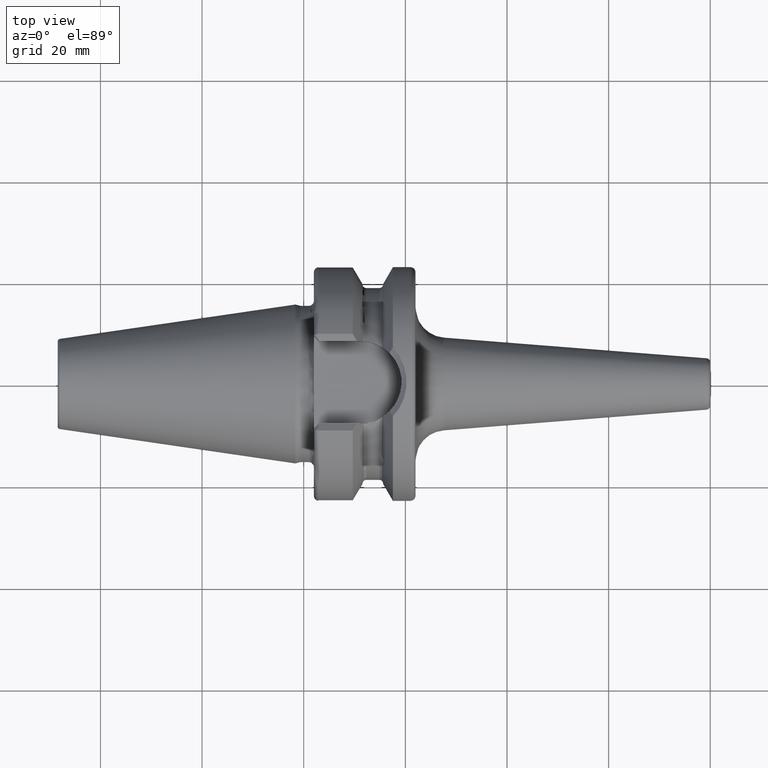
[diagram: clean part render]
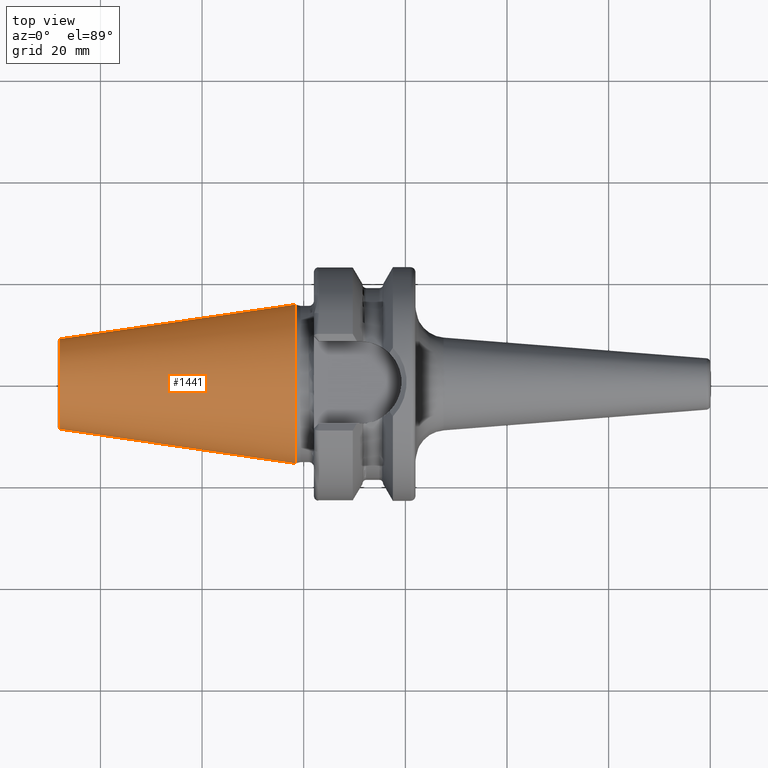
[diagram: same view with one face highlighted and labeled with its STEP entity id]
A machine part, top view. The second image highlights one B-rep face of the part: STEP entity #1441.
In plain terms, the highlighted conical surface has half-angle 8.298 deg.
Its self-contained STEP definition (entity closure, byte-faithful):
#37=CARTESIAN_POINT('',(-4.797215933459E1,0.E0,0.E0));
#38=DIRECTION('',(1.E0,0.E0,0.E0));
#39=DIRECTION('',(0.E0,1.E0,0.E0));
#40=AXIS2_PLACEMENT_3D('',#37,#38,#39);
#42=CARTESIAN_POINT('',(-1.629230650827E0,0.E0,0.E0));
#43=DIRECTION('',(1.E0,0.E0,0.E0));
#44=DIRECTION('',(0.E0,1.E0,0.E0));
#45=AXIS2_PLACEMENT_3D('',#42,#43,#44);
#47=DIRECTION('',(-9.895312636440E-1,-1.443186691705E-1,0.E0));
#48=VECTOR('',#47,4.683321324594E1);
#49=CARTESIAN_POINT('',(-1.629230650827E0,1.563738406209E1,0.E0));
#50=LINE('',#49,#48);
#51=DIRECTION('',(-9.895312636440E-1,1.443186691705E-1,0.E0));
#52=VECTOR('',#51,4.683321324594E1);
#53=CARTESIAN_POINT('',(-1.629230650827E0,-1.563738406209E1,0.E0));
#54=LINE('',#53,#52);
#1138=CARTESIAN_POINT('',(-4.797215933459E1,8.878477053461E0,0.E0));
#1140=VERTEX_POINT('',#1138);
#1142=CARTESIAN_POINT('',(-4.797215933459E1,-8.878477053461E0,0.E0));
#1144=VERTEX_POINT('',#1142);
#1353=CARTESIAN_POINT('',(-1.629230650827E0,1.563738406209E1,0.E0));
#1354=VERTEX_POINT('',#1353);
#1355=CARTESIAN_POINT('',(-1.629230650827E0,-1.563738406209E1,0.E0));
#1356=VERTEX_POINT('',#1355);
#1427=CARTESIAN_POINT('',(-2.480069499271E1,0.E0,0.E0));
#1428=DIRECTION('',(1.E0,0.E0,0.E0));
#1429=DIRECTION('',(0.E0,-1.E0,0.E0));
#1430=AXIS2_PLACEMENT_3D('',#1427,#1428,#1429);
#1431=CONICAL_SURFACE('',#1430,1.225793055778E1,8.297826828206E0);
#1433=ORIENTED_EDGE('',*,*,#1432,.F.);
#1435=ORIENTED_EDGE('',*,*,#1434,.T.);
#1437=ORIENTED_EDGE('',*,*,#1436,.T.);
#1438=ORIENTED_EDGE('',*,*,#1420,.F.);
#1439=EDGE_LOOP('',(#1433,#1435,#1437,#1438));
#1440=FACE_OUTER_BOUND('',#1439,.F.);
#1441=ADVANCED_FACE('',(#1440),#1431,.T.);
#41=CIRCLE('',#40,8.878477053461E0);
#46=CIRCLE('',#45,1.563738406209E1);
#1420=EDGE_CURVE('',#1140,#1144,#41,.T.);
#1432=EDGE_CURVE('',#1354,#1140,#50,.T.);
#1434=EDGE_CURVE('',#1354,#1356,#46,.T.);
#1436=EDGE_CURVE('',#1356,#1144,#54,.T.);